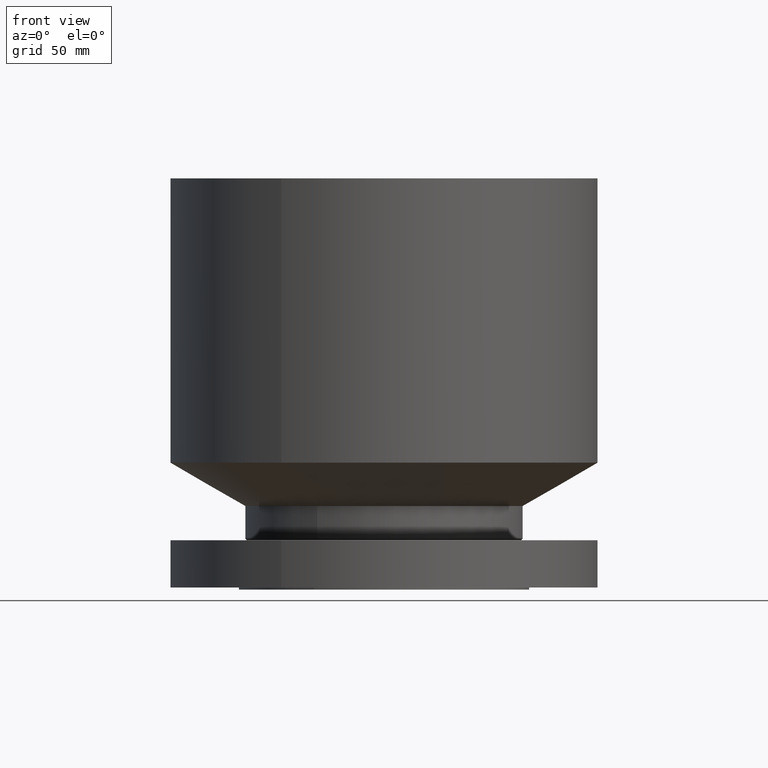
[diagram: clean part render]
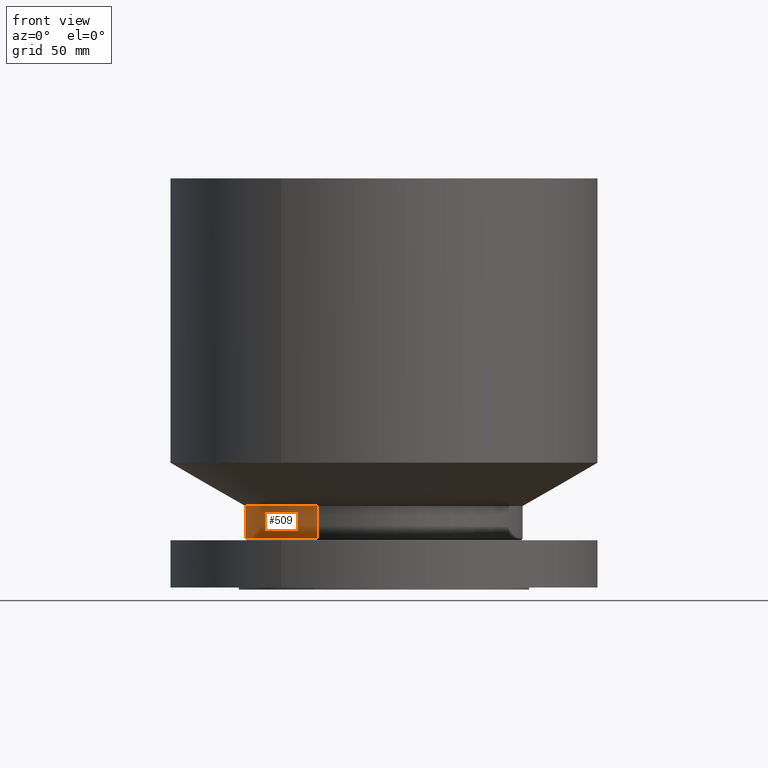
[diagram: same view with one face highlighted and labeled with its STEP entity id]
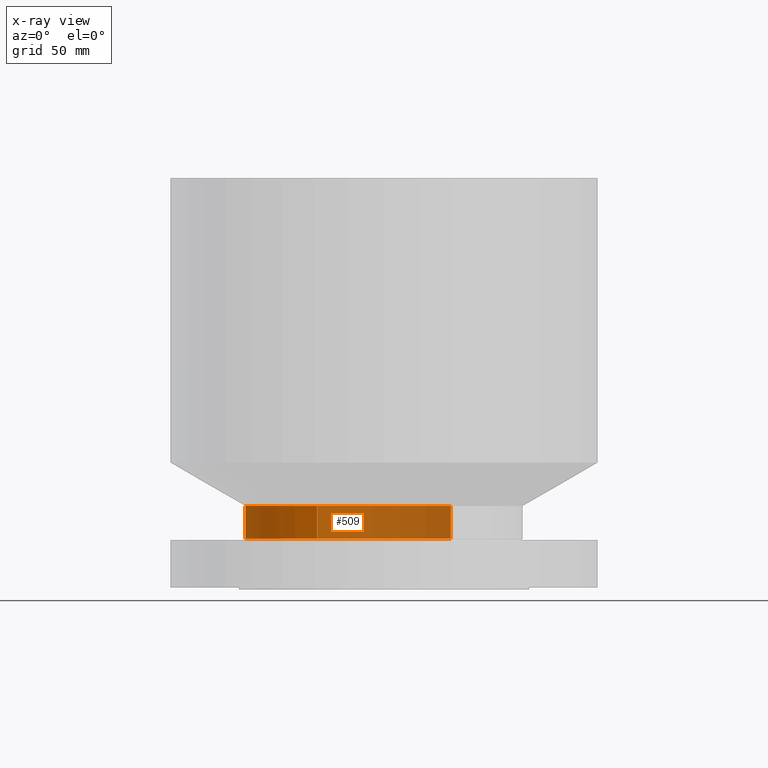
[diagram: x-ray of the same camera — body ghosted, the highlighted face saturated]
A machine part, front view. The second image highlights one B-rep face of the part: STEP entity #509.
The next image is the same camera in x-ray: the body ghosted, the highlighted face saturated — about 65% of this face is hidden behind the body in this view.
In plain terms, the highlighted cylindrical surface (partial cylindrical patch) has radius 103.124 mm, axis along (0, 0, -1).
Its self-contained STEP definition (entity closure, byte-faithful):
#457=AXIS2_PLACEMENT_3D('Circle Axis2P3D',#455,#456,$) ;
#470=AXIS2_PLACEMENT_3D('Cylinder Axis2P3D',#467,#468,#469) ;
#500=AXIS2_PLACEMENT_3D('Circle Axis2P3D',#498,#499,$) ;
#433=CARTESIAN_POINT('Vertex',(1.94646768674,3.56298520129,1.41848076212)) ;
#440=CARTESIAN_POINT('Vertex',(-1.94646768674,-3.56298520129,1.41848076212)) ;
#455=CARTESIAN_POINT('Axis2P3D Location',(0.,0.,1.41848076212)) ;
#467=CARTESIAN_POINT('Axis2P3D Location',(0.,0.,5.93750000002)) ;
#472=CARTESIAN_POINT('Line Origine',(1.94646768674,3.56298520129,1.89799038106)) ;
#476=CARTESIAN_POINT('Vertex',(1.94646768674,3.56298520129,2.37750000001)) ;
#483=CARTESIAN_POINT('Vertex',(-1.94646768674,-3.56298520129,2.37750000001)) ;
#486=CARTESIAN_POINT('Line Origine',(-1.94646768674,-3.56298520129,1.89799038106)) ;
#498=CARTESIAN_POINT('Axis2P3D Location',(0.,0.,2.37750000001)) ;
#456=DIRECTION('Axis2P3D Direction',(-0.,0.,0.0393700787402)) ;
#468=DIRECTION('Axis2P3D Direction',(0.,0.,-0.0393700787402)) ;
#469=DIRECTION('Axis2P3D XDirection',(-0.0188750212049,-0.0345504945626,0.)) ;
#473=DIRECTION('Vector Direction',(0.,0.,-0.0393700787402)) ;
#487=DIRECTION('Vector Direction',(0.,0.,-0.0393700787402)) ;
#499=DIRECTION('Axis2P3D Direction',(0.,0.,-0.0393700787402)) ;
#474=VECTOR('Line Direction',#473,0.0393700787402) ;
#488=VECTOR('Line Direction',#487,0.0393700787402) ;
#504=ORIENTED_EDGE('',*,*,#459,.F.) ;
#505=ORIENTED_EDGE('',*,*,#490,.T.) ;
#506=ORIENTED_EDGE('',*,*,#502,.T.) ;
#507=ORIENTED_EDGE('',*,*,#478,.F.) ;
#509=ADVANCED_FACE('PartBody',(#508),#471,.T.) ;
#458=CIRCLE('generated circle',#457,4.06000000002) ;
#501=CIRCLE('generated circle',#500,4.06000000002) ;
#471=CYLINDRICAL_SURFACE('generated cylinder',#470,4.06000000002) ;
#459=EDGE_CURVE('',#441,#434,#458,.F.) ;
#478=EDGE_CURVE('',#434,#477,#475,.F.) ;
#490=EDGE_CURVE('',#441,#484,#489,.F.) ;
#502=EDGE_CURVE('',#484,#477,#501,.T.) ;
#503=EDGE_LOOP('',(#504,#505,#506,#507)) ;
#508=FACE_OUTER_BOUND('',#503,.T.) ;
#475=LINE('Line',#472,#474) ;
#489=LINE('Line',#486,#488) ;
#434=VERTEX_POINT('',#433) ;
#441=VERTEX_POINT('',#440) ;
#477=VERTEX_POINT('',#476) ;
#484=VERTEX_POINT('',#483) ;